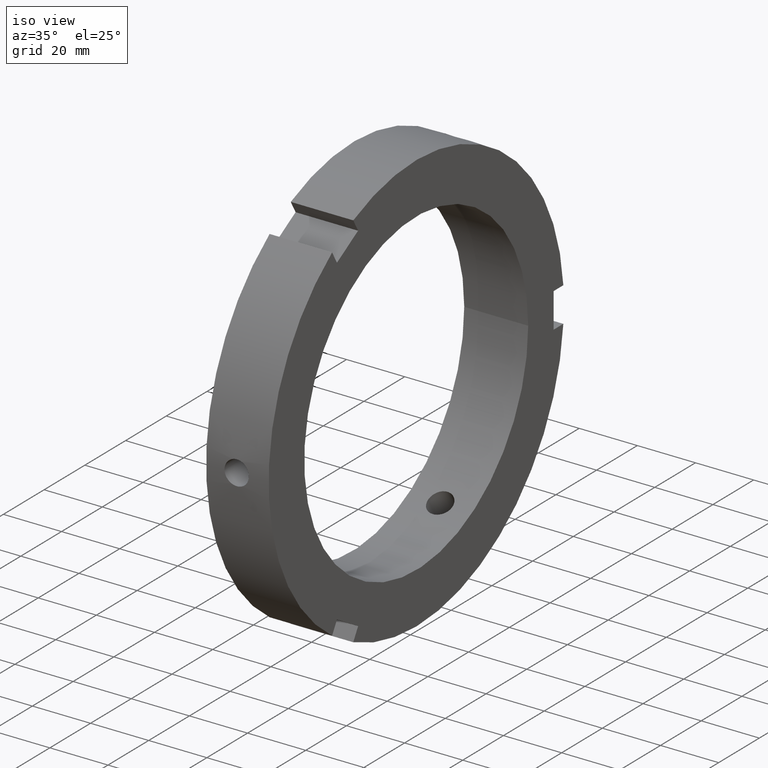
[diagram: clean part render]
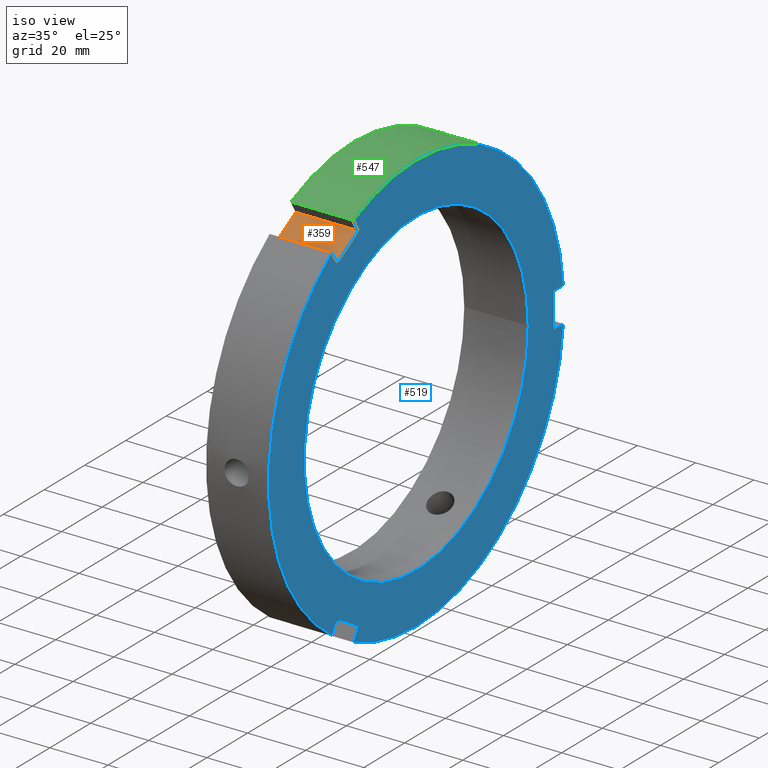
[diagram: same view with three faces highlighted in distinct colors, each labeled with its STEP entity id]
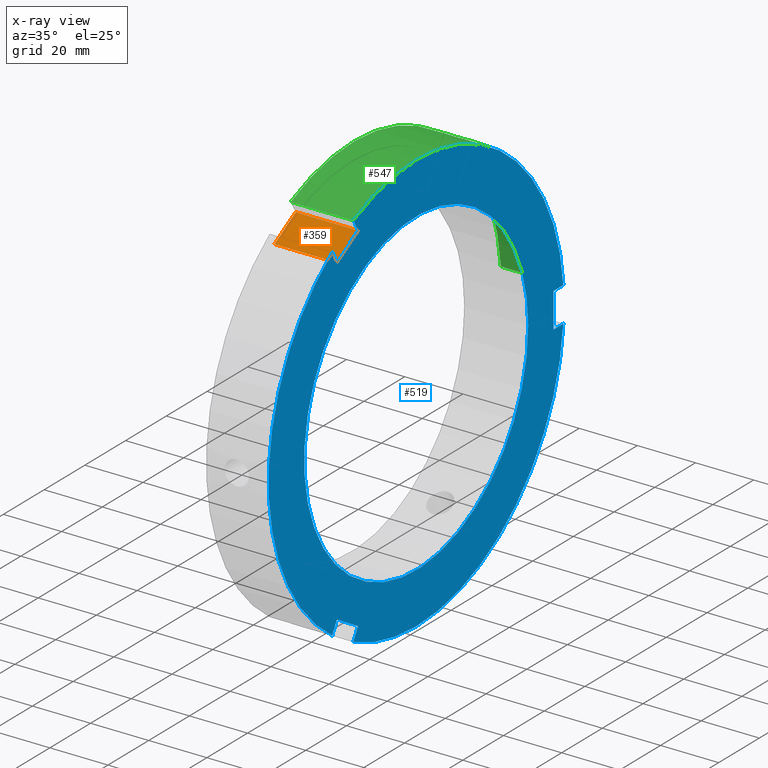
[diagram: x-ray of the same camera — body ghosted, the three highlighted faces saturated]
A machine part, iso view with three faces highlighted in distinct colors.
The next image is the same camera in x-ray (body ghosted, the three faces saturated) — at least one of them is partly hidden behind the body in this view.
Their STEP definitions:

[orange] entity #359 — the highlighted planar face has unit normal (0, 0.5, -0.866).
#263=CARTESIAN_POINT('',(0.499999999999980,-28.553847577293357,61.456714755449617));
#264=VERTEX_POINT('',#263);
#273=CARTESIAN_POINT('',(21.999999999999986,-28.553847577293357,61.456714755449617));
#274=VERTEX_POINT('',#273);
#275=CARTESIAN_POINT('',(21.999999999999986,-28.553847577293357,61.456714755449617));
#276=DIRECTION('',(-1.0,0.0,0.0));
#277=VECTOR('',#276,21.500000000000004);
#278=LINE('',#275,#277);
#279=EDGE_CURVE('',#274,#264,#278,.T.);
#305=CARTESIAN_POINT('',(0.499999999999980,-38.946152422706618,55.456714755449624));
#306=VERTEX_POINT('',#305);
#321=CARTESIAN_POINT('',(21.999999999999986,-38.946152422706618,55.456714755449624));
#322=VERTEX_POINT('',#321);
#329=CARTESIAN_POINT('',(21.999999999999986,-38.946152422706618,55.456714755449624));
#330=DIRECTION('',(-1.0,0.0,0.0));
#331=VECTOR('',#330,21.500000000000004);
#332=LINE('',#329,#331);
#333=EDGE_CURVE('',#322,#306,#332,.T.);
#338=CARTESIAN_POINT('',(21.999999999999986,-38.946152422706618,55.456714755449624));
#339=DIRECTION('',(0.0,0.500000000000000,-0.866025403784439));
#340=DIRECTION('',(0.0,0.866025403784439,0.500000000000000));
#341=AXIS2_PLACEMENT_3D('',#338,#339,#340);
#342=PLANE('',#341);
#343=CARTESIAN_POINT('',(0.499999999999983,-38.946152422706632,55.456714755449624));
#344=DIRECTION('',(0.0,0.866025403784439,0.500000000000000));
#345=VECTOR('',#344,12.000000000000004);
#346=LINE('',#343,#345);
#347=EDGE_CURVE('',#306,#264,#346,.T.);
#348=ORIENTED_EDGE('',*,*,#347,.F.);
#349=ORIENTED_EDGE('',*,*,#333,.F.);
#350=CARTESIAN_POINT('',(21.999999999999986,-28.553847577293361,61.456714755449624));
#351=DIRECTION('',(0.0,-0.866025403784439,-0.499999999999999));
#352=VECTOR('',#351,12.000000000000002);
#353=LINE('',#350,#352);
#354=EDGE_CURVE('',#274,#322,#353,.T.);
#355=ORIENTED_EDGE('',*,*,#354,.F.);
#356=ORIENTED_EDGE('',*,*,#279,.T.);
#357=EDGE_LOOP('',(#348,#349,#355,#356));
#358=FACE_OUTER_BOUND('',#357,.T.);
#359=ADVANCED_FACE('',(#358),#342,.F.);

[blue] entity #519 — the highlighted planar face has unit normal (1, 0, 0).
#83=CARTESIAN_POINT('',(21.999999999999986,-38.946152422706668,-55.456714755449603));
#84=VERTEX_POINT('',#83);
#91=CARTESIAN_POINT('',(21.999999999999986,-41.321801205808129,-59.571459148720500));
#92=VERTEX_POINT('',#91);
#93=CARTESIAN_POINT('',(21.999999999999986,-41.321801205808136,-59.571459148720500));
#94=DIRECTION('',(0.0,0.500000000000001,0.866025403784438));
#95=VECTOR('',#94,4.751297566202914);
#96=LINE('',#93,#95);
#97=EDGE_CURVE('',#92,#84,#96,.T.);
#123=CARTESIAN_POINT('',(21.999999999999986,-30.929496360394868,-65.571459148720507));
#124=VERTEX_POINT('',#123);
#131=CARTESIAN_POINT('',(21.999999999999986,-28.553847577293404,-61.456714755449596));
#132=VERTEX_POINT('',#131);
#133=CARTESIAN_POINT('',(21.999999999999986,-28.553847577293425,-61.456714755449610));
#134=DIRECTION('',(0.0,-0.500000000000001,-0.866025403784438));
#135=VECTOR('',#134,4.751297566202930);
#136=LINE('',#133,#135);
#137=EDGE_CURVE('',#132,#124,#136,.T.);
#160=CARTESIAN_POINT('',(21.999999999999986,-38.946152422706682,-55.456714755449610));
#161=DIRECTION('',(0.0,0.866025403784438,-0.500000000000000));
#162=VECTOR('',#161,12.000000000000004);
#163=LINE('',#160,#162);
#164=EDGE_CURVE('',#84,#132,#163,.T.);
#273=CARTESIAN_POINT('',(21.999999999999986,-28.553847577293357,61.456714755449617));
#274=VERTEX_POINT('',#273);
#281=CARTESIAN_POINT('',(21.999999999999986,-30.929496360394815,65.571459148720521));
#282=VERTEX_POINT('',#281);
#283=CARTESIAN_POINT('',(21.999999999999986,-30.929496360394822,65.571459148720521));
#284=DIRECTION('',(0.0,0.500000000000000,-0.866025403784439));
#285=VECTOR('',#284,4.751297566202918);
#286=LINE('',#283,#285);
#287=EDGE_CURVE('',#282,#274,#286,.T.);
#313=CARTESIAN_POINT('',(21.999999999999986,-41.321801205808072,59.571459148720521));
#314=VERTEX_POINT('',#313);
#321=CARTESIAN_POINT('',(21.999999999999986,-38.946152422706618,55.456714755449624));
#322=VERTEX_POINT('',#321);
#323=CARTESIAN_POINT('',(21.999999999999986,-38.946152422706632,55.456714755449624));
#324=DIRECTION('',(0.0,-0.500000000000000,0.866025403784439));
#325=VECTOR('',#324,4.751297566202910);
#326=LINE('',#323,#325);
#327=EDGE_CURVE('',#322,#314,#326,.T.);
#350=CARTESIAN_POINT('',(21.999999999999986,-28.553847577293361,61.456714755449624));
#351=DIRECTION('',(0.0,-0.866025403784439,-0.499999999999999));
#352=VECTOR('',#351,12.000000000000002);
#353=LINE('',#350,#352);
#354=EDGE_CURVE('',#274,#322,#353,.T.);
#448=CARTESIAN_POINT('',(21.999999999999986,63.750000000000000,0.0));
#449=DIRECTION('',(1.0,0.0,0.0));
#450=DIRECTION('',(0.0,0.0,-1.0));
#451=AXIS2_PLACEMENT_3D('',#448,#449,#450);
#452=PLANE('',#451);
#453=ORIENTED_EDGE('',*,*,#97,.T.);
#454=ORIENTED_EDGE('',*,*,#164,.T.);
#455=ORIENTED_EDGE('',*,*,#137,.T.);
#456=CARTESIAN_POINT('',(21.999999999999986,72.251297566202922,-5.999999999999996));
#457=VERTEX_POINT('',#456);
#458=CARTESIAN_POINT('',(21.999999999999986,0.0,0.0));
#459=DIRECTION('',(1.0,0.0,0.0));
#460=DIRECTION('',(0.0,1.0,0.0));
#461=AXIS2_PLACEMENT_3D('',#458,#459,#460);
#462=CIRCLE('',#461,72.500000000000000);
#463=EDGE_CURVE('',#124,#457,#462,.T.);
#464=ORIENTED_EDGE('',*,*,#463,.T.);
#465=CARTESIAN_POINT('',(21.999999999999986,67.500000000000000,-5.999999999999997));
#466=VERTEX_POINT('',#465);
#467=CARTESIAN_POINT('',(21.999999999999986,72.251297566202922,-5.999999999999996));
#468=DIRECTION('',(0.0,-1.0,0.0));
#469=VECTOR('',#468,4.751297566202922);
#470=LINE('',#467,#469);
#471=EDGE_CURVE('',#457,#466,#470,.T.);
#472=ORIENTED_EDGE('',*,*,#471,.T.);
#473=CARTESIAN_POINT('',(21.999999999999986,67.500000000000000,5.999999999999997));
#474=VERTEX_POINT('',#473);
#475=CARTESIAN_POINT('',(21.999999999999986,67.500000000000000,-5.999999999999998));
#476=DIRECTION('',(0.0,0.0,1.0));
#477=VECTOR('',#476,11.999999999999996);
#478=LINE('',#475,#477);
#479=EDGE_CURVE('',#466,#474,#478,.T.);
#480=ORIENTED_EDGE('',*,*,#479,.T.);
#481=CARTESIAN_POINT('',(21.999999999999986,72.251297566202922,5.999999999999997));
#482=VERTEX_POINT('',#481);
#483=CARTESIAN_POINT('',(21.999999999999986,67.500000000000000,5.999999999999997));
#484=DIRECTION('',(0.0,1.0,0.0));
#485=VECTOR('',#484,4.751297566202922);
#486=LINE('',#483,#485);
#487=EDGE_CURVE('',#474,#482,#486,.T.);
#488=ORIENTED_EDGE('',*,*,#487,.T.);
#489=CARTESIAN_POINT('',(21.999999999999986,0.0,0.0));
#490=DIRECTION('',(1.0,0.0,0.0));
#491=DIRECTION('',(0.0,1.0,0.0));
#492=AXIS2_PLACEMENT_3D('',#489,#490,#491);
#493=CIRCLE('',#492,72.500000000000000);
#494=EDGE_CURVE('',#482,#282,#493,.T.);
#495=ORIENTED_EDGE('',*,*,#494,.T.);
#496=ORIENTED_EDGE('',*,*,#287,.T.);
#497=ORIENTED_EDGE('',*,*,#354,.T.);
#498=ORIENTED_EDGE('',*,*,#327,.T.);
#499=CARTESIAN_POINT('',(21.999999999999986,0.0,0.0));
#500=DIRECTION('',(1.0,0.0,0.0));
#501=DIRECTION('',(0.0,1.0,0.0));
#502=AXIS2_PLACEMENT_3D('',#499,#500,#501);
#503=CIRCLE('',#502,72.500000000000000);
#504=EDGE_CURVE('',#314,#92,#503,.T.);
#505=ORIENTED_EDGE('',*,*,#504,.T.);
#506=EDGE_LOOP('',(#453,#454,#455,#464,#472,#480,#488,#495,#496,#497,#498,#505));
#507=FACE_OUTER_BOUND('',#506,.T.);
#508=CARTESIAN_POINT('',(21.999999999999989,55.0,0.0));
#509=VERTEX_POINT('',#508);
#510=CARTESIAN_POINT('',(21.999999999999986,0.0,0.0));
#511=DIRECTION('',(1.0,0.0,0.0));
#512=DIRECTION('',(0.0,1.0,0.0));
#513=AXIS2_PLACEMENT_3D('',#510,#511,#512);
#514=CIRCLE('',#513,55.0);
#515=EDGE_CURVE('',#509,#509,#514,.T.);
#516=ORIENTED_EDGE('',*,*,#515,.F.);
#517=EDGE_LOOP('',(#516));
#518=FACE_BOUND('',#517,.T.);
#519=ADVANCED_FACE('',(#507,#518),#452,.T.);

[green] entity #547 — the highlighted cylindrical surface (partial cylindrical patch) has radius 72.5 mm, axis along (1, 0, 0).
#175=CARTESIAN_POINT('',(10.999999999999982,39.816383356481737,60.587998947066112));
#176=VERTEX_POINT('',#175);
#177=CARTESIAN_POINT('',(10.999999999999982,39.816383356481722,60.587998947066126));
#178=CARTESIAN_POINT('',(11.525980321830991,39.816383356481722,60.587998947066126));
#179=CARTESIAN_POINT('',(12.086939726019143,39.728490094903655,60.646045880166916));
#180=CARTESIAN_POINT('',(13.118741718952096,39.369740563556668,60.879547748093181));
#181=CARTESIAN_POINT('',(13.589594241376016,39.098725199022645,61.054714240195722));
#182=CARTESIAN_POINT('',(14.333132017821306,38.470000696316177,61.452807010435208));
#183=CARTESIAN_POINT('',(14.655421560537061,38.070319973818741,61.702244863428902));
#184=CARTESIAN_POINT('',(15.082858790318490,37.188161466550909,62.237905900113134));
#185=CARTESIAN_POINT('',(15.187999999999981,36.705512149034554,62.523851712507543));
#186=CARTESIAN_POINT('',(15.187999999999986,35.794487850965510,63.049831836235995));
#187=CARTESIAN_POINT('',(15.082858790318504,35.305526854568008,63.324845500127189));
#188=CARTESIAN_POINT('',(14.655421560537079,34.400551535348029,63.820986659243587));
#189=CARTESIAN_POINT('',(14.333132017821304,33.984691656741305,64.042401391832414));
#190=CARTESIAN_POINT('',(13.589594241376016,33.325570953297749,64.387846398038207));
#191=CARTESIAN_POINT('',(13.118741718952103,33.038364638978123,64.534969342489305));
#192=CARTESIAN_POINT('',(12.086939726019148,32.656771323849377,64.728904616268437));
#193=CARTESIAN_POINT('',(11.525980321830991,32.562554574383270,64.775998947066114));
#194=CARTESIAN_POINT('',(10.474019678168975,32.562554574383270,64.775998947066114));
#195=CARTESIAN_POINT('',(9.913060273980818,32.656771323849377,64.728904616268437));
#196=CARTESIAN_POINT('',(8.881258281047861,33.038364638978123,64.534969342489305));
#197=CARTESIAN_POINT('',(8.410405758623949,33.325570953297749,64.387846398038207));
#198=CARTESIAN_POINT('',(7.666867982178661,33.984691656741305,64.042401391832414));
#199=CARTESIAN_POINT('',(7.344578439462889,34.400551535348029,63.820986659243587));
#200=CARTESIAN_POINT('',(6.917141209681466,35.305526854568008,63.324845500127189));
#201=CARTESIAN_POINT('',(6.811999999999980,35.794487850965510,63.049831836235995));
#202=CARTESIAN_POINT('',(6.811999999999985,36.705512149034547,62.523851712507543));
#203=CARTESIAN_POINT('',(6.917141209681476,37.188161466550902,62.237905900113134));
#204=CARTESIAN_POINT('',(7.344578439462907,38.070319973818741,61.702244863428902));
#205=CARTESIAN_POINT('',(7.666867982178661,38.470000696316177,61.452807010435208));
#206=CARTESIAN_POINT('',(8.410405758623952,39.098725199022645,61.054714240195707));
#207=CARTESIAN_POINT('',(8.881258281047874,39.369740563556661,60.879547748093181));
#208=CARTESIAN_POINT('',(9.913060273980824,39.728490094903648,60.646045880166916));
#209=CARTESIAN_POINT('',(10.474019678168974,39.816383356481722,60.587998947066112));
#210=CARTESIAN_POINT('',(10.999999999999980,39.816383356481722,60.587998947066112));
#211=B_SPLINE_CURVE_WITH_KNOTS('',3,(#177,#178,#179,#180,#181,#182,#183,#184,#185,#186,#187,#188,#189,#190,#191,#192,#193,#194,#195,#196,#197,#198,#199,#200,#201,#202,#203,#204,#205,#206,#207,#208,#209,#210),.UNSPECIFIED.,.T.,.U.,(4,2,2,2,2,2,2,2,2,2,2,2,2,2,2,2,4),(0.0,0.157794096549302,0.315588193098604,0.473382230217140,0.631176267335675,0.788970304454211,0.946764341572747,1.104558438122050,1.262352534671352,1.420146631220655,1.577940727769957,1.735734764888493,1.893528802007029,2.051322839125565,2.209116876244100,2.366910972793402,2.524705069342704),.UNSPECIFIED.);
#212=EDGE_CURVE('',#176,#176,#211,.T.);
#265=CARTESIAN_POINT('',(0.499999999999980,-30.929496360394815,65.571459148720521));
#266=VERTEX_POINT('',#265);
#281=CARTESIAN_POINT('',(21.999999999999986,-30.929496360394815,65.571459148720521));
#282=VERTEX_POINT('',#281);
#289=CARTESIAN_POINT('',(0.499999999999980,-30.929496360394815,65.571459148720521));
#290=DIRECTION('',(1.0,0.0,0.0));
#291=VECTOR('',#290,21.500000000000007);
#292=LINE('',#289,#291);
#293=EDGE_CURVE('',#266,#282,#292,.T.);
#481=CARTESIAN_POINT('',(21.999999999999986,72.251297566202922,5.999999999999997));
#482=VERTEX_POINT('',#481);
#489=CARTESIAN_POINT('',(21.999999999999986,0.0,0.0));
#490=DIRECTION('',(1.0,0.0,0.0));
#491=DIRECTION('',(0.0,1.0,0.0));
#492=AXIS2_PLACEMENT_3D('',#489,#490,#491);
#493=CIRCLE('',#492,72.500000000000000);
#494=EDGE_CURVE('',#482,#282,#493,.T.);
#520=CARTESIAN_POINT('',(11.249999999999982,0.0,0.0));
#521=DIRECTION('',(1.0,0.0,0.0));
#522=DIRECTION('',(0.0,1.0,0.0));
#523=AXIS2_PLACEMENT_3D('',#520,#521,#522);
#524=CYLINDRICAL_SURFACE('',#523,72.500000000000000);
#525=ORIENTED_EDGE('',*,*,#293,.T.);
#526=ORIENTED_EDGE('',*,*,#494,.F.);
#527=CARTESIAN_POINT('',(0.499999999999980,72.251297566202922,5.999999999999996));
#528=VERTEX_POINT('',#527);
#529=CARTESIAN_POINT('',(21.999999999999986,72.251297566202922,5.999999999999996));
#530=DIRECTION('',(-1.0,0.0,0.0));
#531=VECTOR('',#530,21.500000000000007);
#532=LINE('',#529,#531);
#533=EDGE_CURVE('',#482,#528,#532,.T.);
#534=ORIENTED_EDGE('',*,*,#533,.T.);
#535=CARTESIAN_POINT('',(0.499999999999980,0.0,0.0));
#536=DIRECTION('',(1.0,0.0,0.0));
#537=DIRECTION('',(0.0,1.0,0.0));
#538=AXIS2_PLACEMENT_3D('',#535,#536,#537);
#539=CIRCLE('',#538,72.500000000000000);
#540=EDGE_CURVE('',#528,#266,#539,.T.);
#541=ORIENTED_EDGE('',*,*,#540,.T.);
#542=EDGE_LOOP('',(#525,#526,#534,#541));
#543=FACE_OUTER_BOUND('',#542,.T.);
#544=ORIENTED_EDGE('',*,*,#212,.T.);
#545=EDGE_LOOP('',(#544));
#546=FACE_BOUND('',#545,.T.);
#547=ADVANCED_FACE('',(#543,#546),#524,.T.);